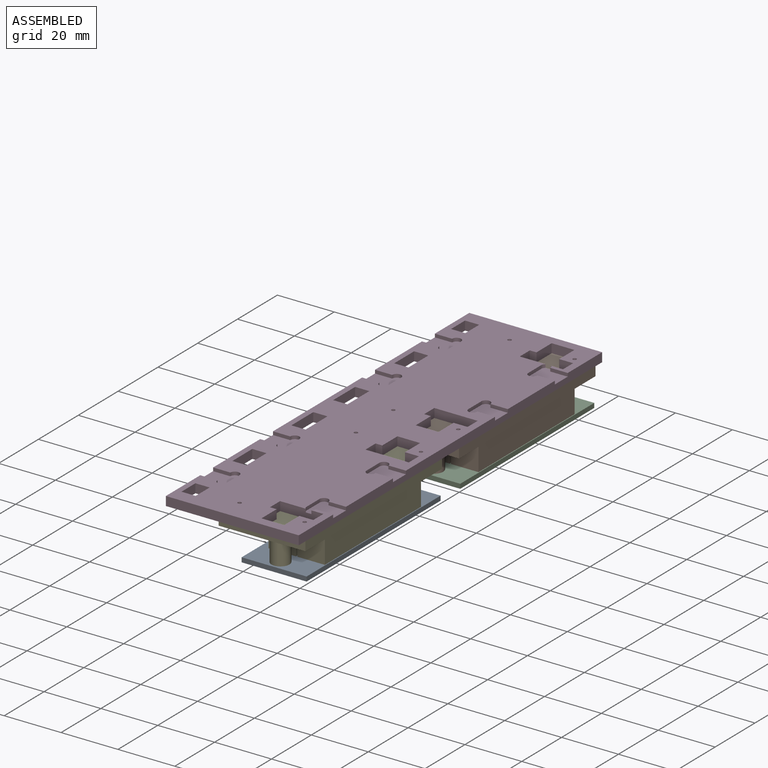
[diagram: assembled view]
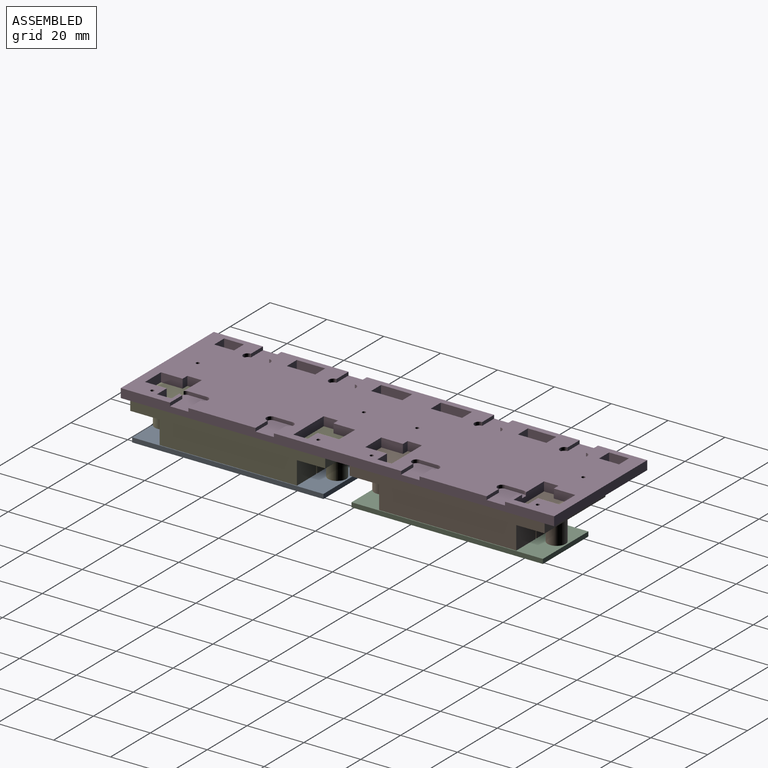
[diagram: assembled view, second angle]
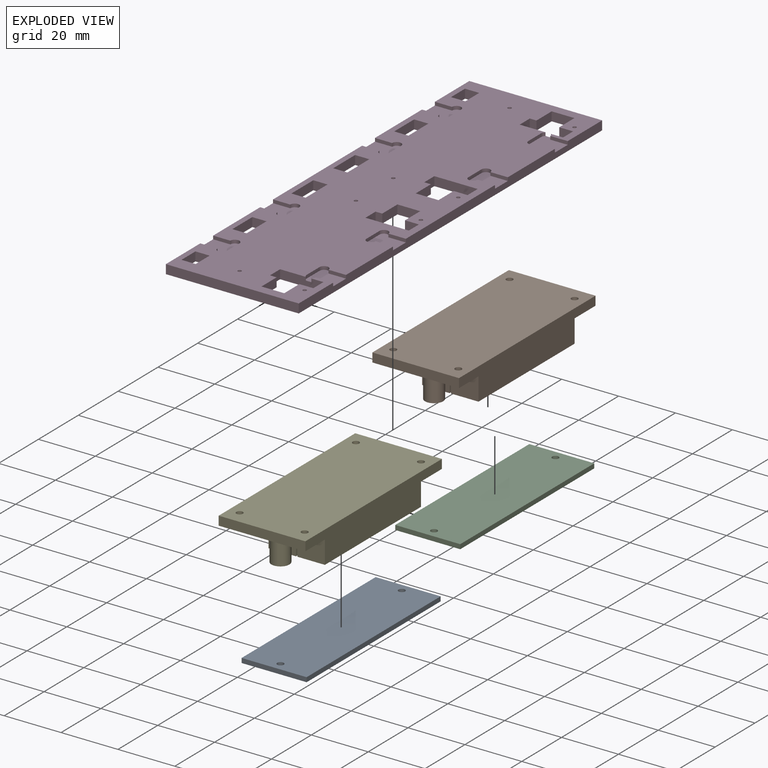
[diagram: exploded view]
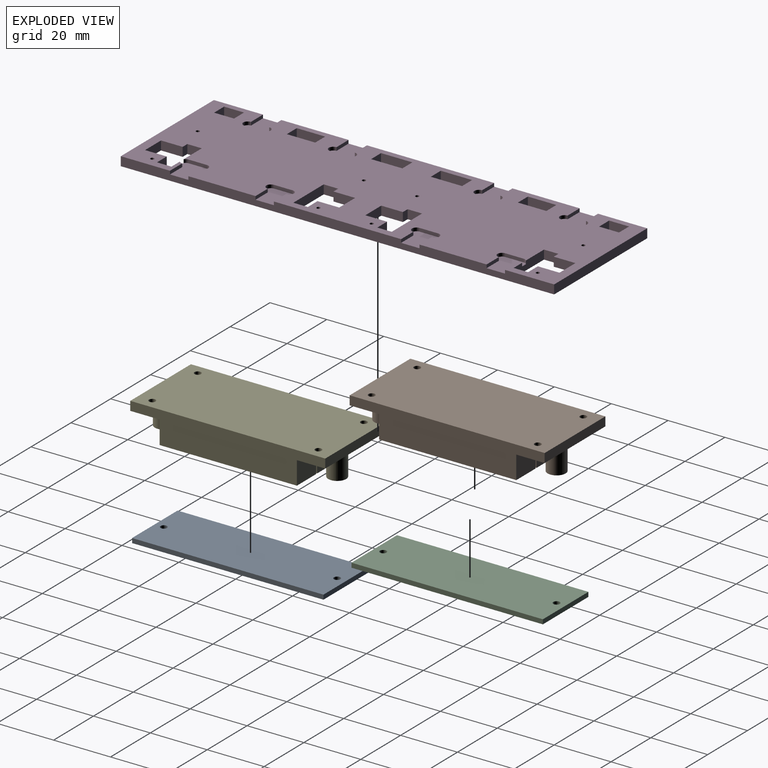
[diagram: exploded view, second angle]
ASSEMBLY  parts=5 mates=4
PART A: 8 faces, bbox 22.9x67.3x1.6 mm
  f0: plane 22.86x1.6mm, normal (0,1,0), area 36.6mm2, adj f1,f3,f4,f5
  f1: plane 67.31x1.6mm, normal (-1,0,0), area 107.7mm2, adj f0,f2,f4,f5
  f2: plane 22.86x1.6mm, normal (0,-1,0), area 36.6mm2, adj f1,f3,f4,f5
  f3: plane 67.31x1.6mm, normal (1,0,0), area 107.7mm2, adj f0,f2,f4,f5
  f4: plane 67.31x22.86mm, normal (0,0,1), area 1530.5mm2, adj f0,f1,f2,f3,f6,f7
  f5: plane 67.31x22.86mm, normal (0,0,-1), area 1530.5mm2, adj f0,f1,f2,f3,f6,f7
  f6: cylinder r=1.14mm len=2.29mm, axis (0,0,1), area 11.5mm2, adj f4,f5
  f7: cylinder r=1.14mm len=2.29mm, axis (0,0,1), area 11.5mm2, adj f4,f5
PART B: 24 faces, bbox 68.6x30.5x11.4 mm
  f0: plane 48.26x9.65mm, normal (0,0,1), area 465.8mm2, adj f1,f2,f3,f4
  f1: plane 9.65x8.26mm, normal (1,0,0), area 79.7mm2, adj f0,f2,f4,f5
  f2: plane 48.26x8.26mm, normal (0,1,0), area 398.4mm2, adj f0,f1,f3,f5
  f3: plane 9.65x8.26mm, normal (-1,0,0), area 79.7mm2, adj f0,f2,f4,f5
  f4: plane 48.26x8.26mm, normal (0,-1,0), area 398.4mm2, adj f0,f1,f3,f5
  f5: plane 68.58x30.48mm, normal (0,0,1), area 1079mm2, adj f1,f2,f3,f4,f6,f7,f9,f11
  f6: plane 30.48x3.18mm, normal (-1,0,0), area 96.8mm2, adj f5,f15,f16,f21
  f7: plane 30.48x3.18mm, normal (1,0,0), area 96.8mm2, adj f5,f15,f16,f21
  f8: plane 6.35x6.35mm, normal (0,0,1), area 31.7mm2, adj f9
  f9: cylinder r=3.17mm len=7.85mm, axis (0,0,-1), area 156.6mm2, adj f5,f8
  f10: plane 48.26x9.65mm, normal (0,0,1), area 465.8mm2, adj f11,f12,f13,f14
  f11: plane 48.26x8.26mm, normal (0,-1,0), area 398.4mm2, adj f5,f10,f12,f14
  f12: plane 9.65x8.26mm, normal (-1,0,0), area 79.7mm2, adj f5,f10,f11,f13
  f13: plane 48.26x8.26mm, normal (0,1,0), area 398.4mm2, adj f5,f10,f12,f14
  f14: plane 9.65x8.26mm, normal (1,0,0), area 79.7mm2, adj f5,f10,f11,f13
  f15: plane 68.58x3.18mm, normal (0,-1,0), area 217.7mm2, adj f5,f6,f7,f21
  f16: plane 68.58x3.18mm, normal (0,1,0), area 217.7mm2, adj f5,f6,f7,f21
  f17: cylinder r=1.14mm len=3.18mm, axis (0,0,1), area 22.8mm2, adj f5,f21
  f18: cylinder r=1.14mm len=3.18mm, axis (0,0,1), area 22.8mm2, adj f5,f21
  f19: cylinder r=1.14mm len=3.18mm, axis (0,0,1), area 22.8mm2, adj f5,f21
  f20: cylinder r=1.14mm len=3.18mm, axis (0,0,1), area 22.8mm2, adj f5,f21
  f21: plane 68.58x30.48mm, normal (0,0,-1), area 2073.9mm2, adj f6,f7,f15,f16,f17,f18,f19,f20
  f22: plane 6.35x6.35mm, normal (0,0,1), area 31.7mm2, adj f23
  f23: cylinder r=3.17mm len=7.85mm, axis (0,0,-1), area 156.6mm2, adj f5,f22
PART C: same geometry as A
PART D: 120 faces, bbox 46.7x152.4x3.2 mm
  f0: plane 152.4x46.74mm, normal (0,0,1), area 5737.5mm2, adj f2,f3,f4,f6,f7,f8,f9,f10
  f1: plane 152.4x46.74mm, normal (0,0,-1), area 6278.9mm2, adj f6,f7,f8,f9,f56,f57,f58,f59
  f2: cylinder r=1.59mm len=1.27mm, axis (0,0,1), area 1.7mm2, adj f0,f10,f15,f79
  f3: cylinder r=1.59mm len=1.27mm, axis (0,0,1), area 1.7mm2, adj f0,f5,f40,f71
  f4: cylinder r=1.59mm len=1.27mm, axis (0,0,1), area 1.7mm2, adj f0,f5,f43,f71
  f5: plane 9.33x9.31mm, normal (0,0,1), area 67.7mm2, adj f3,f4,f6,f40,f41,f42,f43,f71
  f6: plane 152.4x3.18mm, normal (1,0,0), area 453.6mm2, adj f0,f1,f5,f7,f9,f10,f14,f15
  f7: plane 46.74x3.18mm, normal (0,1,0), area 148.4mm2, adj f0,f1,f6,f8
  f8: plane 152.4x3.18mm, normal (-1,0,0), area 453.6mm2, adj f0,f1,f7,f9,f17,f18,f21,f23
  f9: plane 46.74x3.18mm, normal (0,-1,0), area 148.4mm2, adj f0,f1,f6,f8
  f10: plane 6.15x1.18mm, normal (0,-1,0), area 7.2mm2, adj f0,f2,f6,f15
  f11: cylinder r=1.59mm len=1.27mm, axis (0,0,1), area 1.7mm2, adj f0,f12,f15,f79
  f12: plane 6.45x1.18mm, normal (1,0,0), area 7.6mm2, adj f0,f11,f13,f15
  f13: cylinder r=1.59mm len=3.18mm, axis (0,0,1), area 5.9mm2, adj f0,f12,f14,f15
  f14: plane 6.15x1.18mm, normal (0,1,0), area 7.2mm2, adj f0,f6,f13,f15
  f15: plane 9.33x9.31mm, normal (0,0,1), area 67.7mm2, adj f2,f6,f10,f11,f12,f13,f14,f79
  f16: cylinder r=1.59mm len=3.18mm, axis (0,0,1), area 5.9mm2, adj f0,f17,f20,f21
  f17: plane 6.06x1.18mm, normal (0,-1,0), area 7.1mm2, adj f0,f8,f16,f21
  f18: plane 6.06x1.18mm, normal (0,1,0), area 7.1mm2, adj f0,f8,f19,f21
  f19: cylinder r=1.59mm len=3.18mm, axis (0,0,1), area 5.9mm2, adj f0,f18,f20,f21
  f20: plane 6.45x1.18mm, normal (-1,0,0), area 7.6mm2, adj f0,f16,f19,f21
  f21: plane 9.63x9.24mm, normal (0,0,1), area 67.5mm2, adj f8,f16,f17,f18,f19,f20
  f22: cylinder r=1.59mm len=3.18mm, axis (0,0,1), area 5.9mm2, adj f0,f23,f26,f27
  f23: plane 6.06x1.18mm, normal (0,-1,0), area 7.1mm2, adj f0,f8,f22,f27
  f24: plane 6.06x1.18mm, normal (0,1,0), area 7.1mm2, adj f0,f8,f25,f27
  f25: cylinder r=1.59mm len=3.18mm, axis (0,0,1), area 5.9mm2, adj f0,f24,f26,f27
  f26: plane 6.45x1.18mm, normal (-1,0,0), area 7.6mm2, adj f0,f22,f25,f27
  f27: plane 9.63x9.24mm, normal (0,0,1), area 67.5mm2, adj f8,f22,f23,f24,f25,f26
  f28: plane 6.06x1.18mm, normal (0,1,0), area 7.1mm2, adj f0,f8,f29,f33
  f29: cylinder r=1.59mm len=3.18mm, axis (0,0,1), area 5.9mm2, adj f0,f28,f30,f33
  f30: plane 6.45x1.18mm, normal (-1,0,0), area 7.6mm2, adj f0,f29,f31,f33
  f31: cylinder r=1.59mm len=3.18mm, axis (0,0,1), area 5.9mm2, adj f0,f30,f32,f33
  f32: plane 6.06x1.18mm, normal (0,-1,0), area 7.1mm2, adj f0,f8,f31,f33
  f33: plane 9.63x9.24mm, normal (0,0,1), area 67.5mm2, adj f8,f28,f29,f30,f31,f32
  f34: cylinder r=1.59mm len=3.18mm, axis (0,0,1), area 5.9mm2, adj f0,f35,f38,f39
  f35: plane 6.15x1.18mm, normal (0,1,0), area 7.2mm2, adj f0,f6,f34,f39
  f36: plane 6.15x1.18mm, normal (0,-1,0), area 7.2mm2, adj f0,f6,f37,f39
  f37: cylinder r=1.59mm len=3.18mm, axis (0,0,1), area 5.9mm2, adj f0,f36,f38,f39
  f38: plane 6.45x1.18mm, normal (1,0,0), area 7.6mm2, adj f0,f34,f37,f39
  f39: plane 9.63x9.33mm, normal (0,0,1), area 68.1mm2, adj f6,f34,f35,f36,f37,f38
  f40: plane 6.15x1.18mm, normal (0,1,0), area 7.2mm2, adj f0,f3,f5,f6
  f41: plane 6.15x1.18mm, normal (0,-1,0), area 7.2mm2, adj f0,f5,f6,f42
  f42: cylinder r=1.59mm len=3.18mm, axis (0,0,1), area 5.9mm2, adj f0,f5,f41,f43
  f43: plane 6.45x1.18mm, normal (1,0,0), area 7.6mm2, adj f0,f4,f5,f42
  f44: cylinder r=1.59mm len=3.18mm, axis (0,0,1), area 5.9mm2, adj f0,f45,f48,f49
  f45: plane 6.15x1.18mm, normal (0,1,0), area 7.2mm2, adj f0,f6,f44,f49
  f46: plane 6.15x1.18mm, normal (0,-1,0), area 7.2mm2, adj f0,f6,f47,f49
  f47: cylinder r=1.59mm len=3.18mm, axis (0,0,1), area 5.9mm2, adj f0,f46,f48,f49
  f48: plane 6.45x1.18mm, normal (1,0,0), area 7.6mm2, adj f0,f44,f47,f49
  f49: plane 9.63x9.33mm, normal (0,0,1), area 68.1mm2, adj f6,f44,f45,f46,f47,f48
  f50: plane 6.06x1.18mm, normal (0,1,0), area 7.1mm2, adj f0,f8,f51,f55
  f51: cylinder r=1.59mm len=3.18mm, axis (0,0,1), area 5.9mm2, adj f0,f50,f52,f55
  f52: plane 6.45x1.18mm, normal (-1,0,0), area 7.6mm2, adj f0,f51,f53,f55
  f53: cylinder r=1.59mm len=3.18mm, axis (0,0,1), area 5.9mm2, adj f0,f52,f54,f55
  f54: plane 6.06x1.18mm, normal (0,-1,0), area 7.1mm2, adj f0,f8,f53,f55
  f55: plane 9.63x9.24mm, normal (0,0,1), area 67.5mm2, adj f8,f50,f51,f52,f53,f54
  f56: cylinder r=0.64mm len=3.18mm, axis (0,0,1), area 12.7mm2, adj f0,f1
  f57: cylinder r=0.64mm len=3.18mm, axis (0,0,1), area 12.7mm2, adj f0,f1
  f58: cylinder r=0.64mm len=3.18mm, axis (0,0,1), area 12.7mm2, adj f0,f1
  f59: cylinder r=0.64mm len=3.18mm, axis (0,0,1), area 12.7mm2, adj f0,f1
  f60: cylinder r=0.64mm len=3.18mm, axis (0,0,1), area 12.7mm2, adj f0,f1
  f61: cylinder r=0.64mm len=3.18mm, axis (0,0,1), area 12.7mm2, adj f0,f1
  f62: cylinder r=0.64mm len=3.18mm, axis (0,0,1), area 12.7mm2, adj f0,f1
  f63: cylinder r=0.64mm len=3.18mm, axis (0,0,1), area 12.7mm2, adj f0,f1
  f64: plane 5.08x3.18mm, normal (1,0,0), area 16.1mm2, adj f0,f1,f65,f71
  f65: plane 3.18x2.35mm, normal (0,1,0), area 7.5mm2, adj f0,f1,f64,f66
  f66: plane 7.62x3.18mm, normal (1,0,0), area 24.2mm2, adj f0,f1,f65,f67
  f67: plane 8x3.18mm, normal (0,1,0), area 25.4mm2, adj f0,f1,f66,f68
  f68: plane 7.62x3.18mm, normal (-1,0,0), area 24.2mm2, adj f0,f1,f67,f69
  f69: plane 4.89x3.18mm, normal (0,1,0), area 15.5mm2, adj f0,f1,f68,f70
  f70: plane 5.08x3.18mm, normal (-1,0,0), area 16.1mm2, adj f0,f1,f69,f71
  f71: plane 15.24x3.18mm, normal (0,-1,0), area 46.1mm2, adj f0,f1,f3,f4,f5,f64,f70
  f72: plane 5.08x3.18mm, normal (-1,0,0), area 16.1mm2, adj f0,f1,f73,f79
  f73: plane 4.89x3.18mm, normal (0,-1,0), area 15.5mm2, adj f0,f1,f72,f74
  f74: plane 7.62x3.18mm, normal (-1,0,0), area 24.2mm2, adj f0,f1,f73,f75
  f75: plane 8x3.18mm, normal (0,-1,0), area 25.4mm2, adj f0,f1,f74,f76
  f76: plane 7.62x3.18mm, normal (1,0,0), area 24.2mm2, adj f0,f1,f75,f77
  f77: plane 3.18x2.35mm, normal (0,-1,0), area 7.5mm2, adj f0,f1,f76,f78
  f78: plane 5.08x3.18mm, normal (1,0,0), area 16.1mm2, adj f0,f1,f77,f79
  f79: plane 15.24x3.18mm, normal (0,1,0), area 46.1mm2, adj f0,f1,f2,f11,f15,f72,f78
  f80: plane 7.62x3.18mm, normal (-1,0,0), area 24.2mm2, adj f0,f1,f81,f87
  f81: plane 8x3.18mm, normal (0,-1,0), area 25.4mm2, adj f0,f1,f80,f82
  f82: plane 7.62x3.18mm, normal (1,0,0), area 24.2mm2, adj f0,f1,f81,f83
  f83: plane 3.18x2.35mm, normal (0,-1,0), area 7.5mm2, adj f0,f1,f82,f84
  f84: plane 5.08x3.18mm, normal (1,0,0), area 16.1mm2, adj f0,f1,f83,f85
  f85: plane 15.24x3.18mm, normal (0,1,0), area 48.4mm2, adj f0,f1,f84,f86
  f86: plane 5.08x3.18mm, normal (-1,0,0), area 16.1mm2, adj f0,f1,f85,f87
  f87: plane 4.89x3.18mm, normal (0,-1,0), area 15.5mm2, adj f0,f1,f80,f86
  f88: plane 7.62x3.18mm, normal (-1,0,0), area 24.2mm2, adj f0,f1,f89,f95
  f89: plane 4.89x3.18mm, normal (0,1,0), area 15.5mm2, adj f0,f1,f88,f90
  f90: plane 5.08x3.18mm, normal (-1,0,0), area 16.1mm2, adj f0,f1,f89,f91
  f91: plane 15.24x3.18mm, normal (0,-1,0), area 48.4mm2, adj f0,f1,f90,f92
  f92: plane 5.08x3.18mm, normal (1,0,0), area 16.1mm2, adj f0,f1,f91,f93
  f93: plane 3.18x2.35mm, normal (0,1,0), area 7.5mm2, adj f0,f1,f92,f94
  f94: plane 7.62x3.18mm, normal (1,0,0), area 24.2mm2, adj f0,f1,f93,f95
  f95: plane 8x3.18mm, normal (0,1,0), area 25.4mm2, adj f0,f1,f88,f94
  f96: plane 5x3.18mm, normal (0,-1,0), area 15.9mm2, adj f0,f1,f97,f99
  f97: plane 10x3.18mm, normal (1,0,0), area 31.8mm2, adj f0,f1,f96,f98
  f98: plane 5x3.18mm, normal (0,1,0), area 15.9mm2, adj f0,f1,f97,f99
  f99: plane 10x3.18mm, normal (-1,0,0), area 31.8mm2, adj f0,f1,f96,f98
  f100: plane 5x3.18mm, normal (0,1,0), area 15.9mm2, adj f0,f1,f101,f103
  f101: plane 10x3.18mm, normal (-1,0,0), area 31.8mm2, adj f0,f1,f100,f102
  f102: plane 5x3.18mm, normal (0,-1,0), area 15.9mm2, adj f0,f1,f101,f103
  f103: plane 10x3.18mm, normal (1,0,0), area 31.8mm2, adj f0,f1,f100,f102
  f104: plane 11x3.18mm, normal (1,0,0), area 34.9mm2, adj f0,f1,f105,f107
  f105: plane 5x3.18mm, normal (0,1,0), area 15.9mm2, adj f0,f1,f104,f106
  f106: plane 11x3.18mm, normal (-1,0,0), area 34.9mm2, adj f0,f1,f105,f107
  f107: plane 5x3.18mm, normal (0,-1,0), area 15.9mm2, adj f0,f1,f104,f106
  f108: plane 5x3.18mm, normal (0,1,0), area 15.9mm2, adj f0,f1,f109,f111
  f109: plane 7x3.18mm, normal (-1,0,0), area 22.2mm2, adj f0,f1,f108,f110
  f110: plane 5x3.18mm, normal (0,-1,0), area 15.9mm2, adj f0,f1,f109,f111
  f111: plane 7x3.18mm, normal (1,0,0), area 22.2mm2, adj f0,f1,f108,f110
  f112: plane 5x3.18mm, normal (0,-1,0), area 15.9mm2, adj f0,f1,f113,f115
  f113: plane 11x3.18mm, normal (1,0,0), area 34.9mm2, adj f0,f1,f112,f114
  f114: plane 5x3.18mm, normal (0,1,0), area 15.9mm2, adj f0,f1,f113,f115
  f115: plane 11x3.18mm, normal (-1,0,0), area 34.9mm2, adj f0,f1,f112,f114
  f116: plane 5x3.18mm, normal (0,-1,0), area 15.9mm2, adj f0,f1,f117,f119
  f117: plane 7x3.18mm, normal (1,0,0), area 22.2mm2, adj f0,f1,f116,f118
  f118: plane 5x3.18mm, normal (0,1,0), area 15.9mm2, adj f0,f1,f117,f119
  f119: plane 7x3.18mm, normal (-1,0,0), area 22.2mm2, adj f0,f1,f116,f118
PART E: same geometry as B
PLACE A t=(1.24,-75.57,-16.21)mm
PLACE B rot(axis=(0.71,-0.71,0),180deg) t=(1.24,1.6,-3.18)mm
PLACE C rot(axis=(1,0,0),180deg) t=(1.24,68.91,-14.61)mm
PLACE D t=(-45.5,-3.33,-3.18)mm
PLACE E rot(axis=(0.71,-0.71,0),180deg) t=(1.24,-75.57,-3.18)mm
MATE fastened B.f18 <-> D.f56  axis (0,0,1) through (-2.57,6.05,-3.18)mm
MATE fastened C.f6 <-> B.f9  axis (0,0,1) through (-10.19,65.74,-14.61)mm
MATE fastened E.f20 <-> D.f63  axis (0,0,1) through (-2.57,-12.7,-3.18)mm
MATE fastened A.f7 <-> E.f9  axis (0,0,1) through (-10.19,-11.43,-14.61)mm
